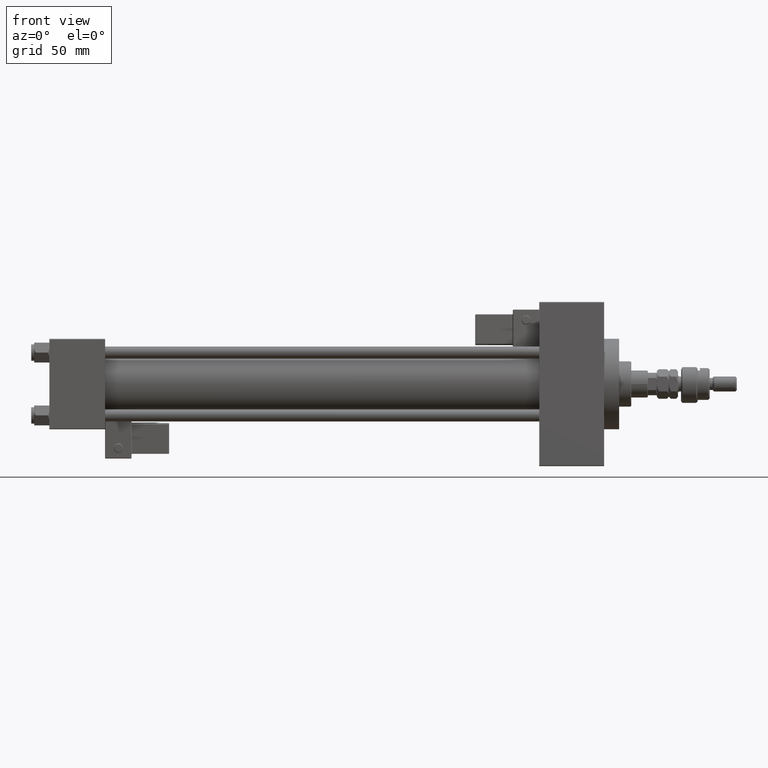
[diagram: clean part render]
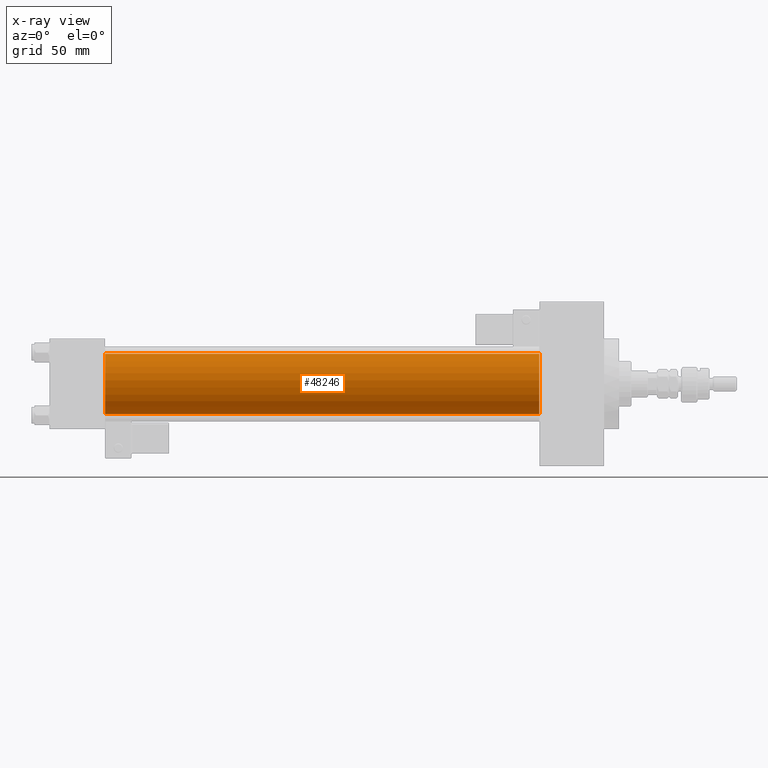
[diagram: x-ray — body ghosted, one internal face saturated and labeled with its STEP entity id]
A machine part, front view, then the same camera in x-ray: the body is ghosted and one INTERNAL B-rep face — a face not visible from any outside direction — is saturated and labeled: STEP entity #48246.
In plain terms, the highlighted cylindrical surface (edge-blend (fillet) strip) has radius 20 mm, axis along (-1, -0, -0).
Its self-contained STEP definition (entity closure, byte-faithful):
#37 = ORIENTED_EDGE ( 'NONE', *, *, #29904, .T. ) ;
#708 = EDGE_CURVE ( 'NONE', #17146, #53656, #53254, .T. ) ;
#2776 = DIRECTION ( 'NONE',  ( 1.000000000000000000, 0.000000000000000000, 0.000000000000000000 ) ) ;
#3248 = FACE_OUTER_BOUND ( 'NONE', #24749, .T. ) ;
#3600 = DIRECTION ( 'NONE',  ( -1.000000000000000000, -0.000000000000000000, -0.000000000000000000 ) ) ;
#5875 = VECTOR ( 'NONE', #3600, 1000.000000000000000 ) ;
#7602 = ORIENTED_EDGE ( 'NONE', *, *, #9661, .T. ) ;
#8002 = CARTESIAN_POINT ( 'NONE',  ( 324.9999999999999432, -1.527916156705042519E-16, -20.00000000000000000 ) ) ;
#9661 = EDGE_CURVE ( 'NONE', #17146, #40959, #29841, .T. ) ;
#9901 = DIRECTION ( 'NONE',  ( 1.000000000000000000, 0.000000000000000000, 0.000000000000000000 ) ) ;
#11557 = DIRECTION ( 'NONE',  ( 0.000000000000000000, 0.000000000000000000, -1.000000000000000000 ) ) ;
#13792 = CARTESIAN_POINT ( 'NONE',  ( 37.00000000000000000, -2.602085213965210642E-15, 20.00000000000000000 ) ) ;
#15647 = CARTESIAN_POINT ( 'NONE',  ( 324.9999999999999432, -2.602085213965210642E-15, 20.00000000000000000 ) ) ;
#16151 = DIRECTION ( 'NONE',  ( -1.000000000000000000, -0.000000000000000000, -0.000000000000000000 ) ) ;
#17146 = VERTEX_POINT ( 'NONE', #48090 ) ;
#18732 = ORIENTED_EDGE ( 'NONE', *, *, #47936, .F. ) ;
#19196 = DIRECTION ( 'NONE',  ( 0.000000000000000000, 0.000000000000000000, 1.000000000000000000 ) ) ;
#20003 = CYLINDRICAL_SURFACE ( 'NONE', #21008, 20.00000000000000000 ) ;
#20335 = CARTESIAN_POINT ( 'NONE',  ( 37.00000000000000000, -2.602085213965210642E-15, 0.000000000000000000 ) ) ;
#21008 = AXIS2_PLACEMENT_3D ( 'NONE', #44177, #16151, #19196 ) ;
#24191 = LINE ( 'NONE', #8002, #5875 ) ;
#24749 = EDGE_LOOP ( 'NONE', ( #7602, #37, #18732, #39971 ) ) ;
#27834 = VECTOR ( 'NONE', #32396, 1000.000000000000000 ) ;
#29841 = CIRCLE ( 'NONE', #48255, 20.00000000000000000 ) ;
#29904 = EDGE_CURVE ( 'NONE', #40959, #52850, #24191, .T. ) ;
#32396 = DIRECTION ( 'NONE',  ( -1.000000000000000000, -0.000000000000000000, -0.000000000000000000 ) ) ;
#34623 = DIRECTION ( 'NONE',  ( 0.000000000000000000, 0.000000000000000000, -1.000000000000000000 ) ) ;
#39825 = CARTESIAN_POINT ( 'NONE',  ( 324.9999999999999432, -2.602085213965210642E-15, 0.000000000000000000 ) ) ;
#39971 = ORIENTED_EDGE ( 'NONE', *, *, #708, .F. ) ;
#40959 = VERTEX_POINT ( 'NONE', #46115 ) ;
#44177 = CARTESIAN_POINT ( 'NONE',  ( 324.9999999999999432, -2.602085213965210642E-15, 0.000000000000000000 ) ) ;
#44681 = AXIS2_PLACEMENT_3D ( 'NONE', #20335, #2776, #11557 ) ;
#46115 = CARTESIAN_POINT ( 'NONE',  ( 324.9999999999999432, -1.527916156705042519E-16, -20.00000000000000000 ) ) ;
#47298 = CIRCLE ( 'NONE', #44681, 20.00000000000000000 ) ;
#47936 = EDGE_CURVE ( 'NONE', #53656, #52850, #47298, .T. ) ;
#48090 = CARTESIAN_POINT ( 'NONE',  ( 324.9999999999999432, -2.602085213965210642E-15, 20.00000000000000000 ) ) ;
#48246 = ADVANCED_FACE ( 'NONE', ( #3248 ), #20003, .F. ) ;
#48255 = AXIS2_PLACEMENT_3D ( 'NONE', #39825, #9901, #34623 ) ;
#50178 = CARTESIAN_POINT ( 'NONE',  ( 37.00000000000000000, -1.527916156705042519E-16, -20.00000000000000000 ) ) ;
#52850 = VERTEX_POINT ( 'NONE', #50178 ) ;
#53254 = LINE ( 'NONE', #15647, #27834 ) ;
#53656 = VERTEX_POINT ( 'NONE', #13792 ) ;